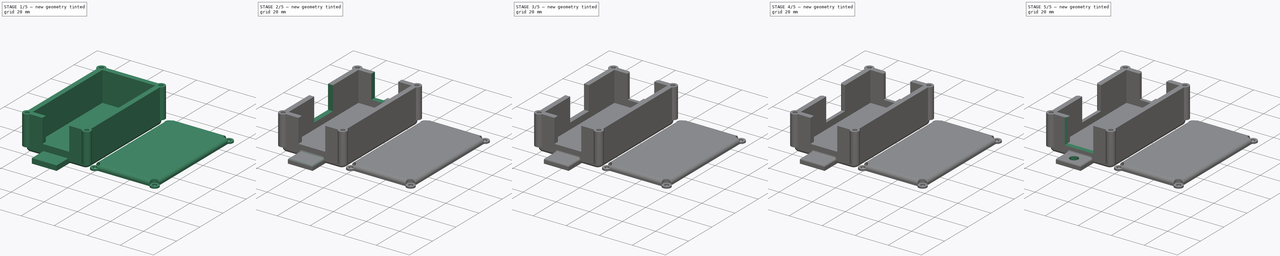
[diagram: build sequence overview — one tinted view per stage of 5, left to right]
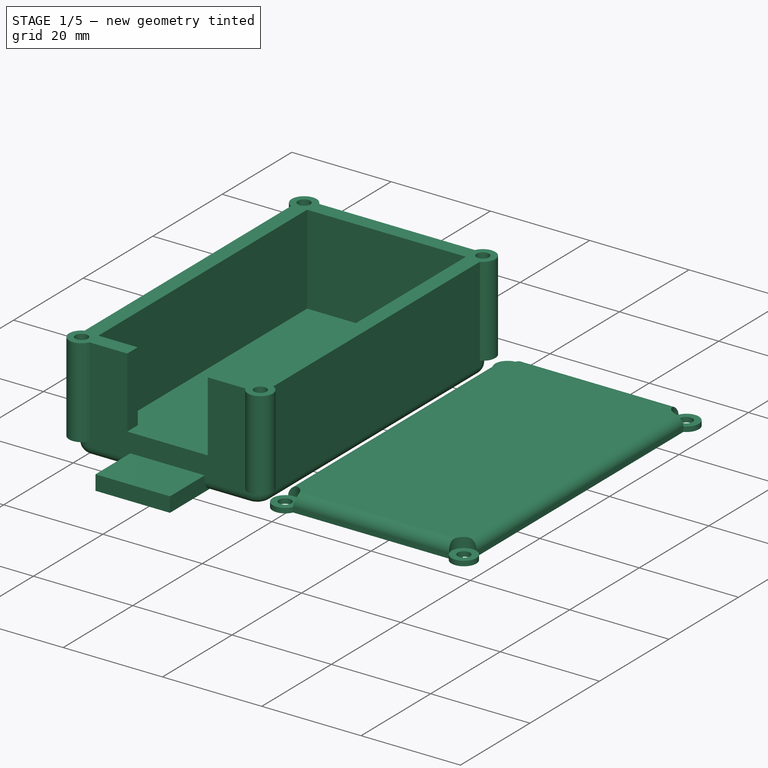
[diagram: stage 1 of 5 — iso view after this stage's code; geometry added in this stage tinted green]
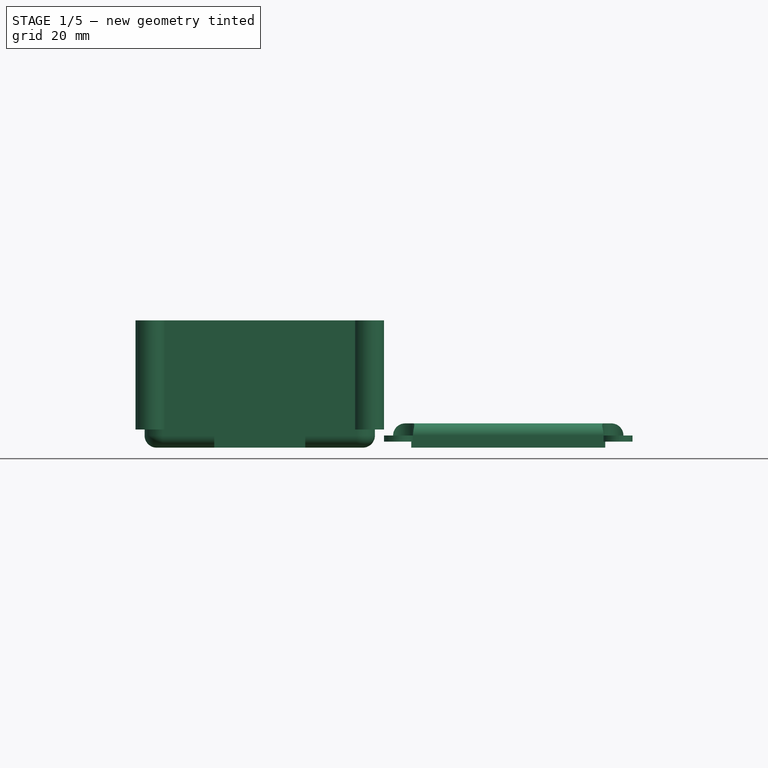
[diagram: stage 1 of 5 — front view after this stage's code; geometry added in this stage tinted green]
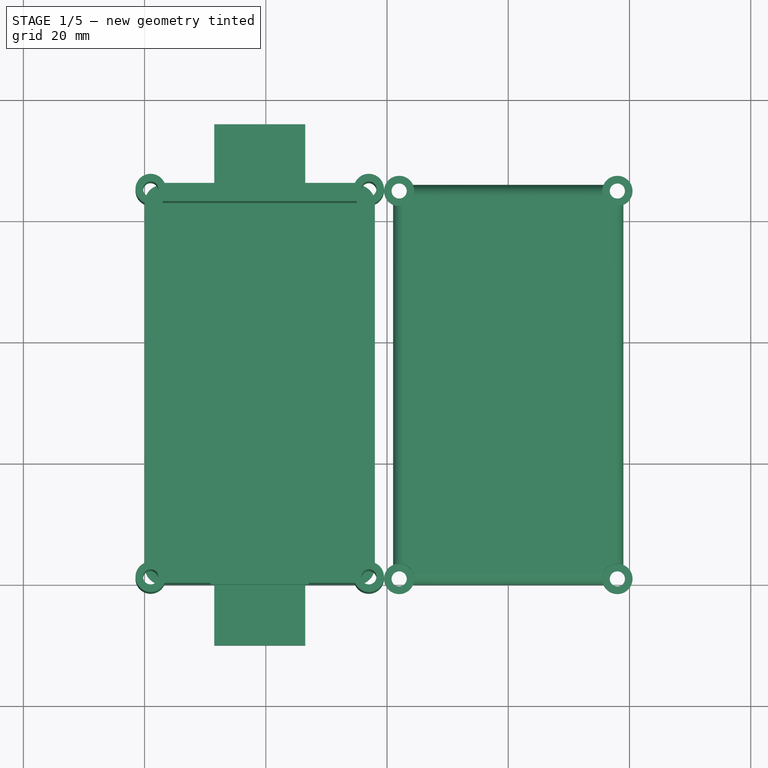
[diagram: stage 1 of 5 — top view after this stage's code; geometry added in this stage tinted green]
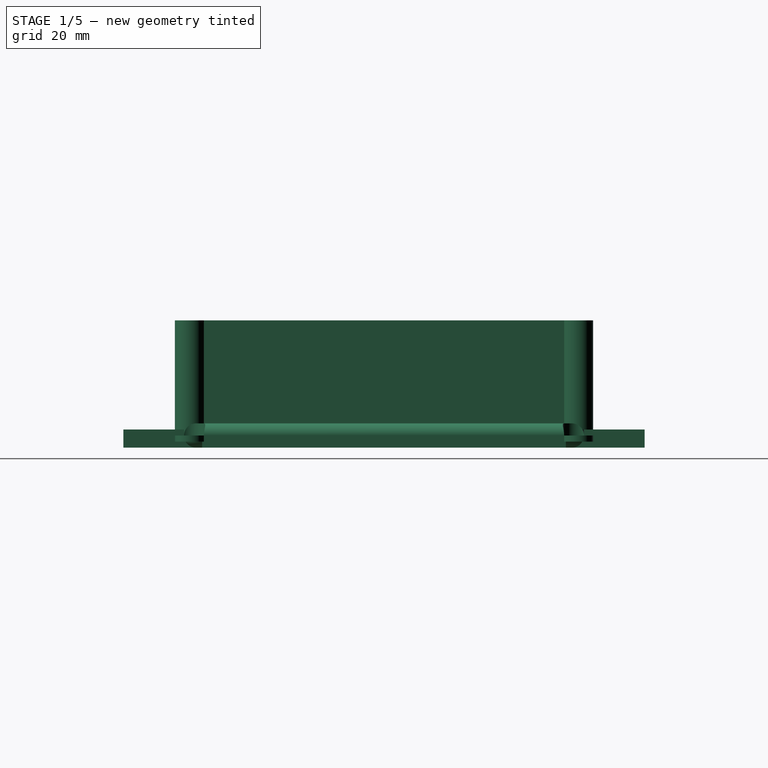
[diagram: stage 1 of 5 — right view after this stage's code; geometry added in this stage tinted green]
FCSTD DOCUMENT  (FreeCAD 0.14R3700 (Git))
Label: enclosure3
License: CC-BY 3.0
LicenseURL: http://creativecommons.org/licenses/by/3.0/
objects: PartDesign::Chamfer×8, Sketcher::SketchObject×5, PartDesign::Pocket×5, PartDesign::Fillet×2, Part::FeaturePython×1, Part::Box×1, Part::Fuse×1
note: 28 computed .brp shape members not serialized (recipe doc carries the construction recipe); baked Part::Feature solids carry a one-line shape summary decoded from their .brp

FEATURE [Part::FeaturePython] BoxEnclosure  # WARN: FeaturePython — macro-defined, semantics opaque (R4)
  BoreDepth = 2
  BoreDiameter = 5
  CountersinkAngle = 90
  CountersinkDiameter = 0
  InnerHeight = 18
  InnerLength = 60
  InnerWidth = 32
  LidFlip = false
  LipHeight = 1
  OuterHeight = 24
  OuterLength = 66
  OuterWidth = 38
  ScrewpostID = 2.5
  ScrewpostInset = 1
  ScrewpostOD = 5
  SideRadius = 3
  Thickness = 3
  TopAndBottomRadius = 2
FEATURE [Part::Box] Box  label="Tabs"
  Height = 3
  Length = 15
  Placement = pos=(11.5,-10,0) rot=(0,0,1;0rad)
  Width = 86
FEATURE [Part::Fuse] Fusion
  Base = -> BoxEnclosure
  Tool = -> Box
FEATURE [Sketcher::SketchObject] Sketch
  ExternalGeometry = -> [Fusion]
  Placement = pos=(0,0,0) rot=(1,0,0;1.5708rad)
  Support = -> Fusion [Face7]
  sketch-geometry (6):
    g0: LineSegment StartX=10.9 StartY=21 StartZ=0 EndX=27.1 EndY=21 EndZ=0
    g1: LineSegment StartX=27.1 StartY=21 StartZ=0 EndX=27.1 EndY=6.8 EndZ=0
    g2: LineSegment StartX=27.1 StartY=6.8 StartZ=0 EndX=10.9 EndY=6.8 EndZ=0
    g3: LineSegment StartX=10.9 StartY=6.8 StartZ=0 EndX=10.9 EndY=21 EndZ=0
    g4: LineSegment [constr] StartX=3.29129 StartY=3 StartZ=0 EndX=10.9 EndY=6.8 EndZ=0
    g5: LineSegment [constr] StartX=34.7087 StartY=3 StartZ=0 EndX=27.1 EndY=6.8 EndZ=0
  constraints (16):
    c: Coincident(g0,g1)
    c: Coincident(g1,g2)
    c: Coincident(g2,g3)
    c: Coincident(g3,g0)
    c: Horizontal(g0)
    c: Horizontal(g2)
    c: Vertical(g1)
    c: Vertical(g3)
    c: DistanceX(g0) = 16.2
    c: DistanceY(g1) = -14.2
    c: PointOnObject(g0,g-4)
    c: Coincident(g5,g1)
    c: Coincident(g2,g4)
    c: Coincident(g4,g-3)
    c: Coincident(g-5,g5)
    c: Equal(g4,g5)
FEATURE [PartDesign::Pocket] Pocket
  Length = 5
  Sketch = -> Sketch
  Type = 2
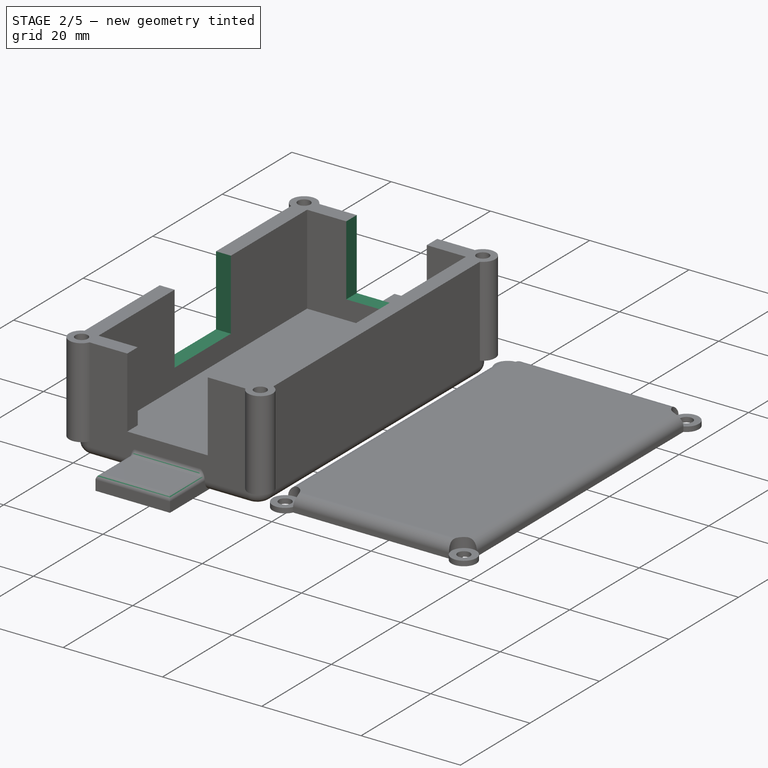
[diagram: stage 2 of 5 — iso view after this stage's code; geometry added in this stage tinted green]
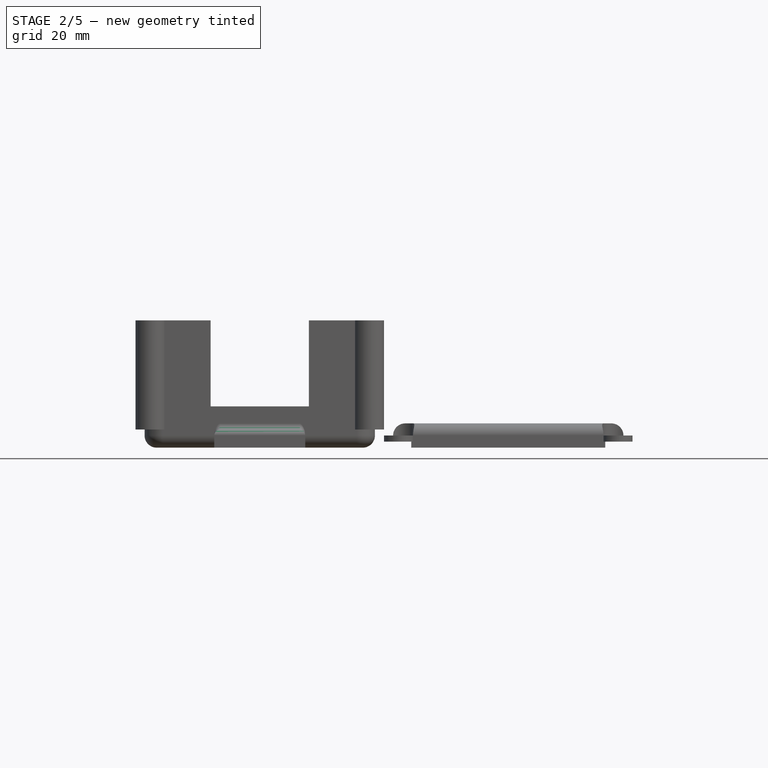
[diagram: stage 2 of 5 — front view after this stage's code; geometry added in this stage tinted green]
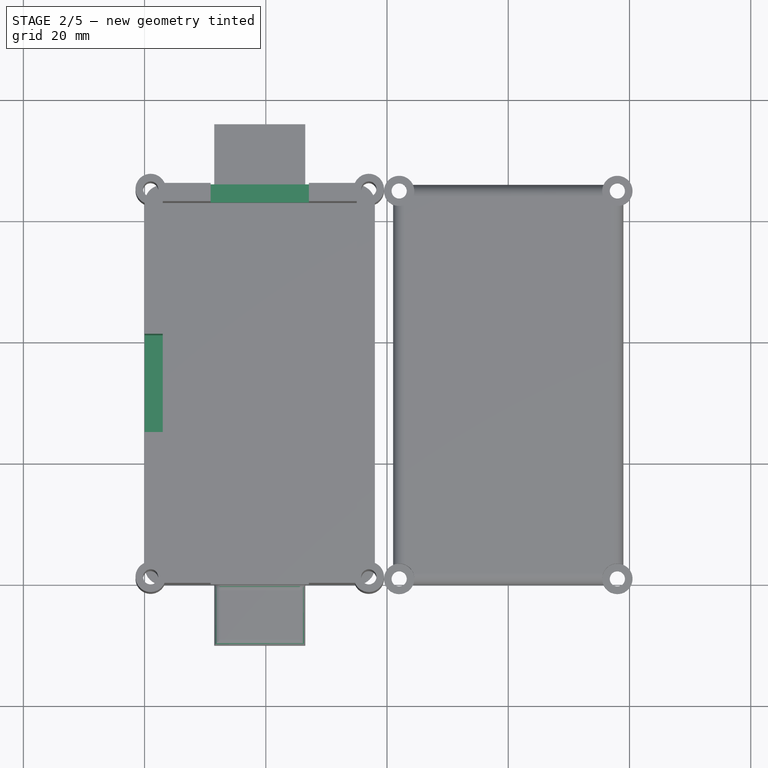
[diagram: stage 2 of 5 — top view after this stage's code; geometry added in this stage tinted green]
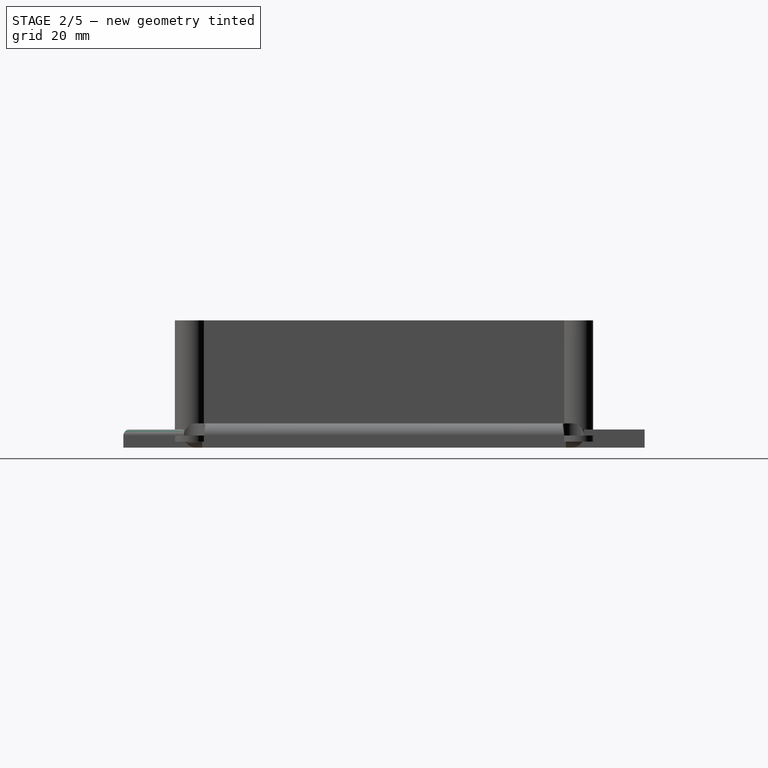
[diagram: stage 2 of 5 — right view after this stage's code; geometry added in this stage tinted green]
FEATURE [Sketcher::SketchObject] Sketch001
  ExternalGeometry = -> [Pocket]
  Placement = pos=(0,66,0) rot=(0,0.707107,0.707107;3.14159rad)
  Support = -> Pocket [Face40]
  sketch-geometry (6):
    g0: LineSegment StartX=-27.1 StartY=21 StartZ=0 EndX=-10.9 EndY=21 EndZ=0
    g1: LineSegment StartX=-10.9 StartY=21 StartZ=0 EndX=-10.9 EndY=6.8 EndZ=0
    g2: LineSegment StartX=-10.9 StartY=6.8 StartZ=0 EndX=-27.1 EndY=6.8 EndZ=0
    g3: LineSegment StartX=-27.1 StartY=6.8 StartZ=0 EndX=-27.1 EndY=21 EndZ=0
    g4: LineSegment [constr] StartX=-34.7087 StartY=3 StartZ=0 EndX=-27.1 EndY=6.8 EndZ=0
    g5: LineSegment [constr] StartX=-10.9 StartY=6.8 StartZ=0 EndX=-3.29129 EndY=3 EndZ=0
  constraints (16):
    c: Coincident(g0,g1)
    c: Coincident(g1,g2)
    c: Coincident(g2,g3)
    c: Coincident(g3,g0)
    c: Horizontal(g0)
    c: Horizontal(g2)
    c: Vertical(g1)
    c: Vertical(g3)
    c: Coincident(g4,g2)
    c: Coincident(g4,g-3)
    c: Coincident(g5,g1)
    c: Coincident(g5,g-5)
    c: PointOnObject(g0,g-4)
    c: Equal(g4,g5)
    c: DistanceY(g1) = -14.2
    c: DistanceX(g2) = -16.2
FEATURE [PartDesign::Pocket] Pocket001
  Length = 5
  Sketch = -> Sketch001
  Type = 2
FEATURE [Sketcher::SketchObject] Sketch002
  ExternalGeometry = -> [Pocket001]
  Placement = pos=(0,0,0) rot=(0.57735,-0.57735,-0.57735;2.0944rad)
  Support = -> Pocket001 [Face35]
  sketch-geometry (6):
    g0: LineSegment StartX=-41.1 StartY=21 StartZ=0 EndX=-24.9 EndY=21 EndZ=0
    g1: LineSegment StartX=-24.9 StartY=21 StartZ=0 EndX=-24.9 EndY=6.8 EndZ=0
    g2: LineSegment StartX=-24.9 StartY=6.8 StartZ=0 EndX=-41.1 EndY=6.8 EndZ=0
    g3: LineSegment StartX=-41.1 StartY=6.8 StartZ=0 EndX=-41.1 EndY=21 EndZ=0
    g4: LineSegment [constr] StartX=-62.7087 StartY=3 StartZ=0 EndX=-41.1 EndY=6.8 EndZ=0
    g5: LineSegment [constr] StartX=-24.9 StartY=6.8 StartZ=0 EndX=-3.29129 EndY=3 EndZ=0
  constraints (16):
    c: Coincident(g0,g1)
    c: Coincident(g1,g2)
    c: Coincident(g2,g3)
    c: Coincident(g3,g0)
    c: Horizontal(g0)
    c: Horizontal(g2)
    c: Vertical(g1)
    c: Vertical(g3)
    c: DistanceX(g0) = 16.2
    c: DistanceY(g1) = -14.2
    c: PointOnObject(g0,g-4)
    c: Coincident(g5,g1)
    c: Coincident(g4,g2)
    c: Coincident(g4,g-3)
    c: Coincident(g5,g-5)
    c: Equal(g4,g5)
FEATURE [PartDesign::Pocket] Pocket002
  Length = 5
  Sketch = -> Sketch002
  Type = 2
FEATURE [PartDesign::Fillet] Fillet
  Base = -> Pocket002 [Edge11,Edge8,Edge3,Edge12]
  Radius = 1
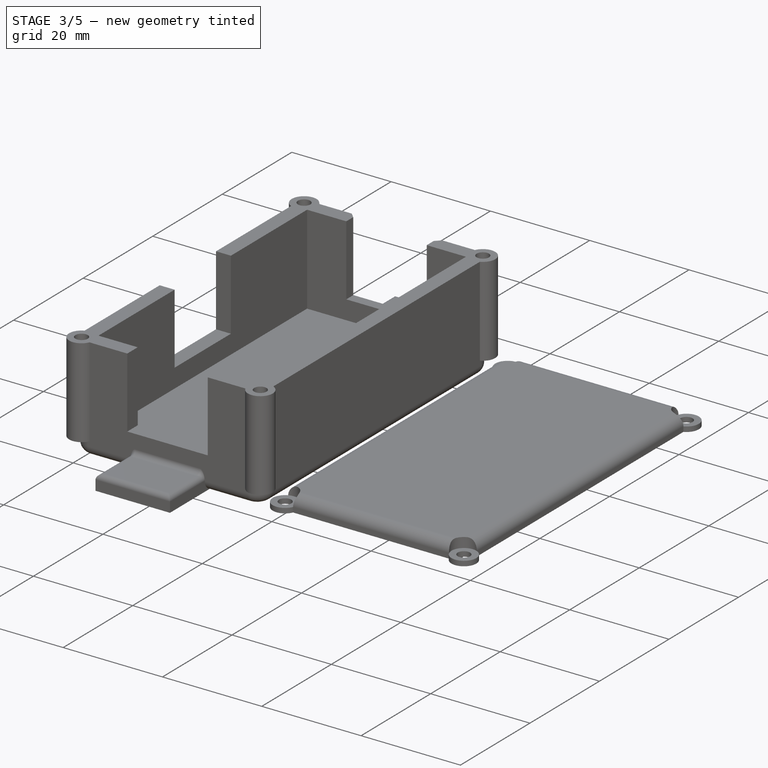
[diagram: stage 3 of 5 — iso view after this stage's code; geometry added in this stage tinted green]
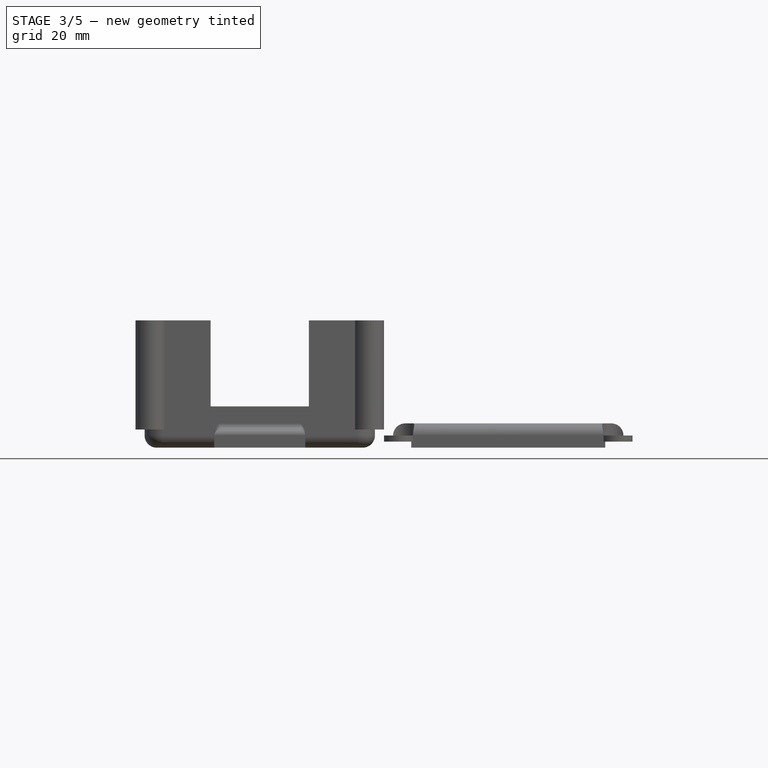
[diagram: stage 3 of 5 — front view after this stage's code; geometry added in this stage tinted green]
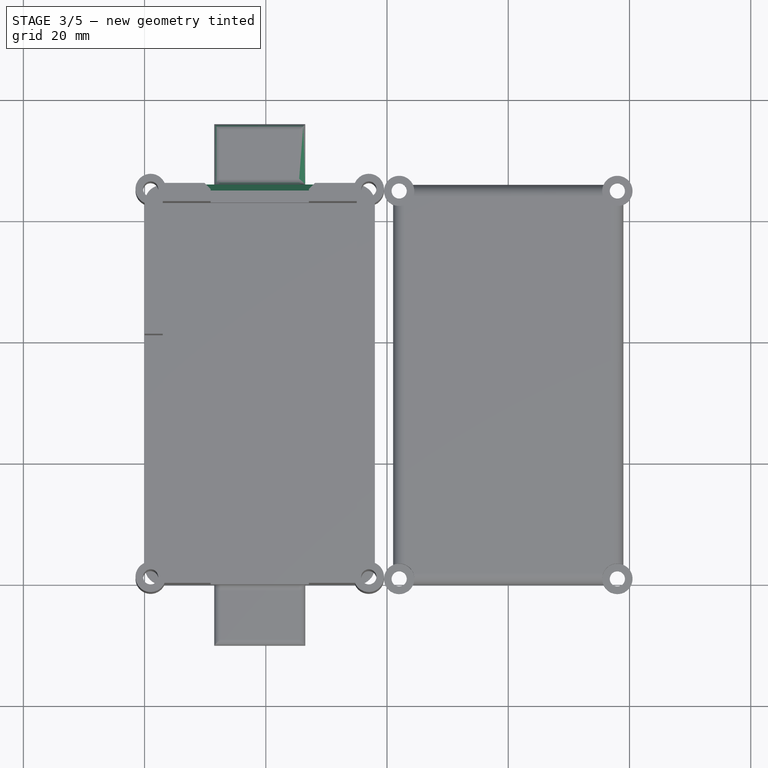
[diagram: stage 3 of 5 — top view after this stage's code; geometry added in this stage tinted green]
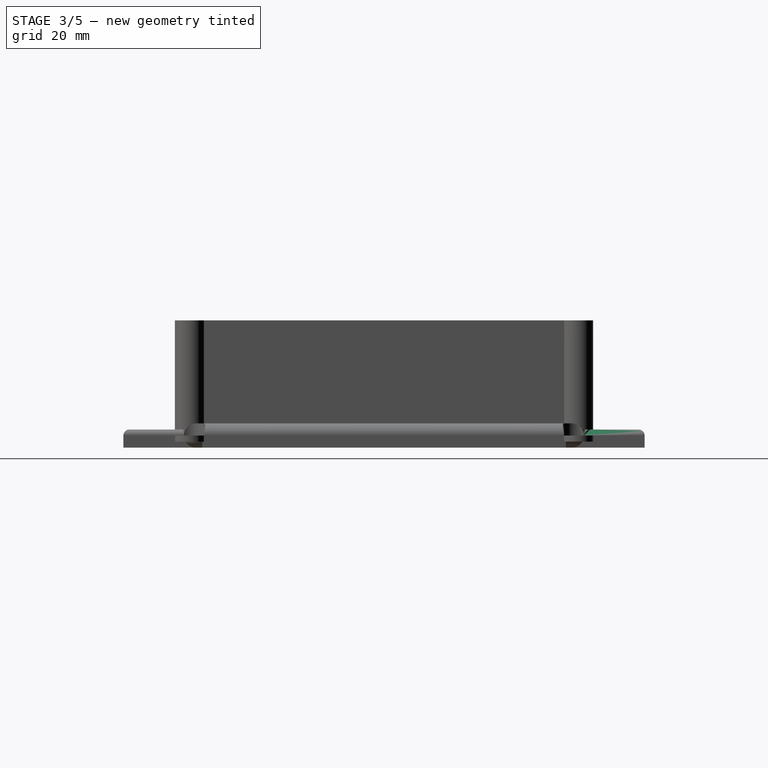
[diagram: stage 3 of 5 — right view after this stage's code; geometry added in this stage tinted green]
FEATURE [PartDesign::Fillet] Fillet001
  Base = -> Fillet [Edge121,Edge124,Edge126,Edge156]
  Radius = 1
FEATURE [PartDesign::Chamfer] Chamfer
  Base = -> Fillet001 [Edge41]
  Size = 1
FEATURE [PartDesign::Chamfer] Chamfer001
  Base = -> Chamfer [Edge6]
  Size = 1
FEATURE [PartDesign::Chamfer] Chamfer002
  Base = -> Chamfer001 [Edge2]
  Size = 1
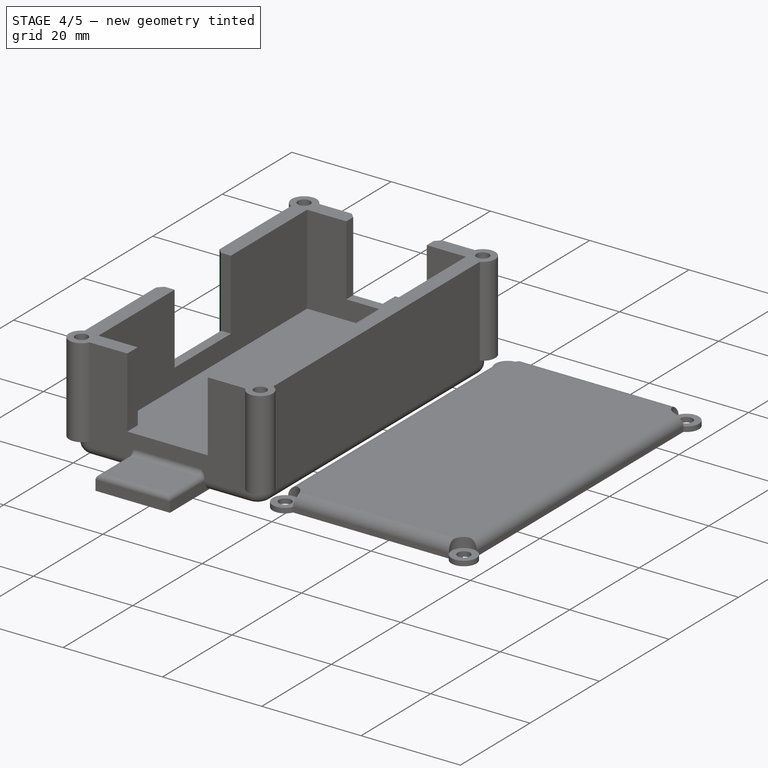
[diagram: stage 4 of 5 — iso view after this stage's code; geometry added in this stage tinted green]
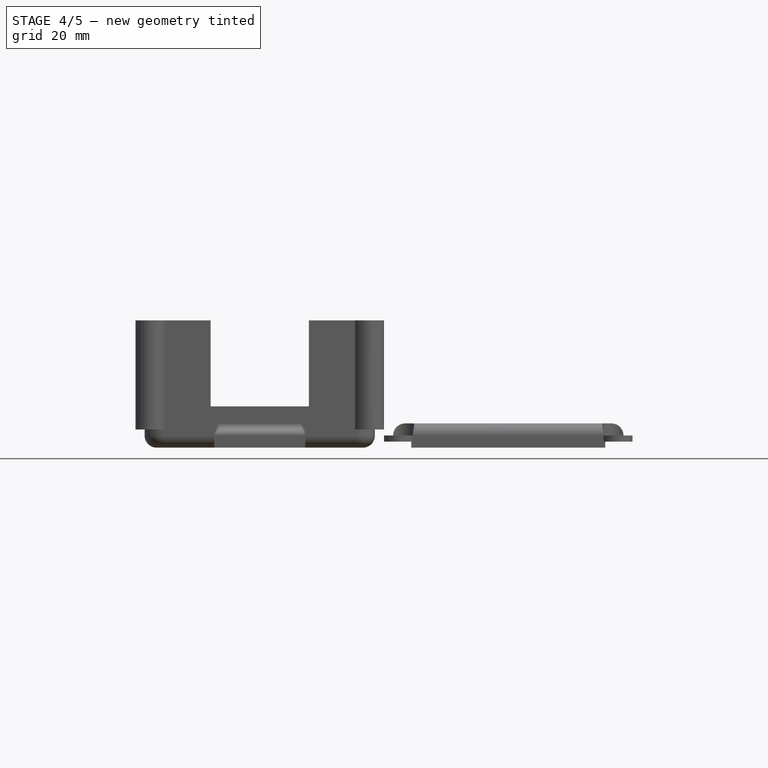
[diagram: stage 4 of 5 — front view after this stage's code; geometry added in this stage tinted green]
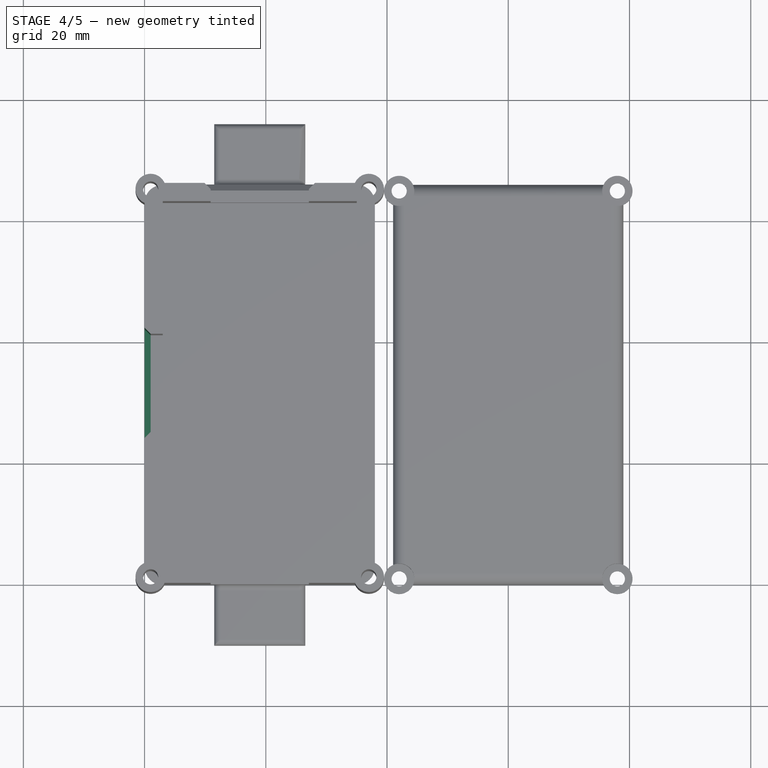
[diagram: stage 4 of 5 — top view after this stage's code; geometry added in this stage tinted green]
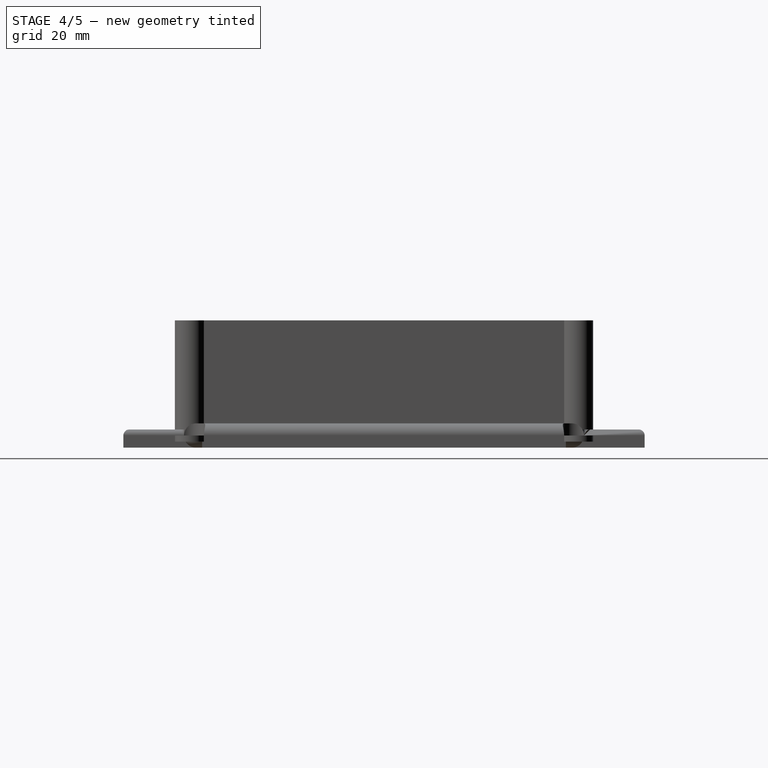
[diagram: stage 4 of 5 — right view after this stage's code; geometry added in this stage tinted green]
FEATURE [PartDesign::Chamfer] Chamfer003
  Base = -> Chamfer002 [Edge96]
  Size = 1
FEATURE [PartDesign::Chamfer] Chamfer004
  Base = -> Chamfer003 [Edge18]
  Size = 1
FEATURE [PartDesign::Chamfer] Chamfer005
  Base = -> Chamfer004 [Edge6]
  Size = 1
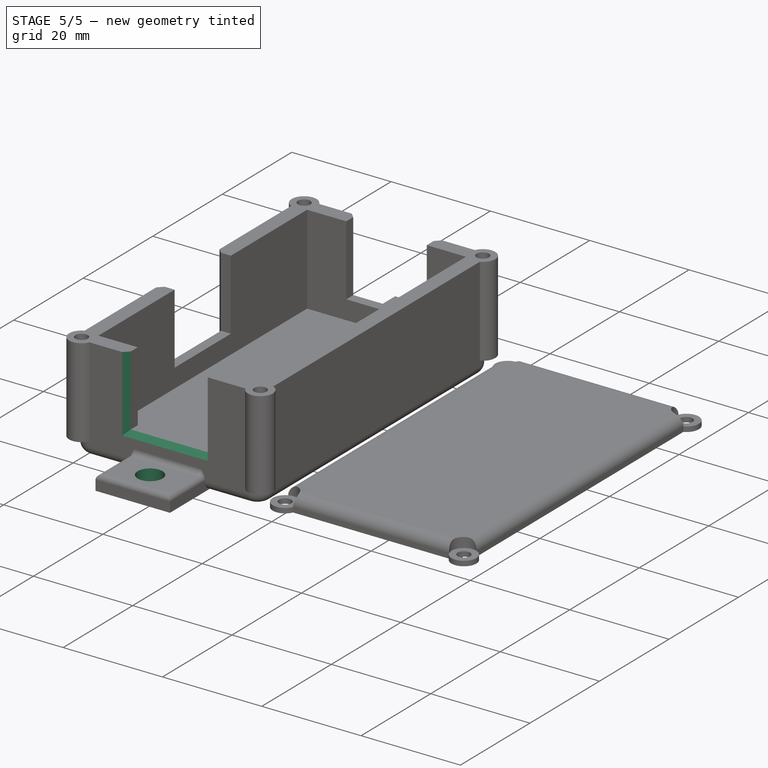
[diagram: stage 5 of 5 — iso view after this stage's code; geometry added in this stage tinted green]
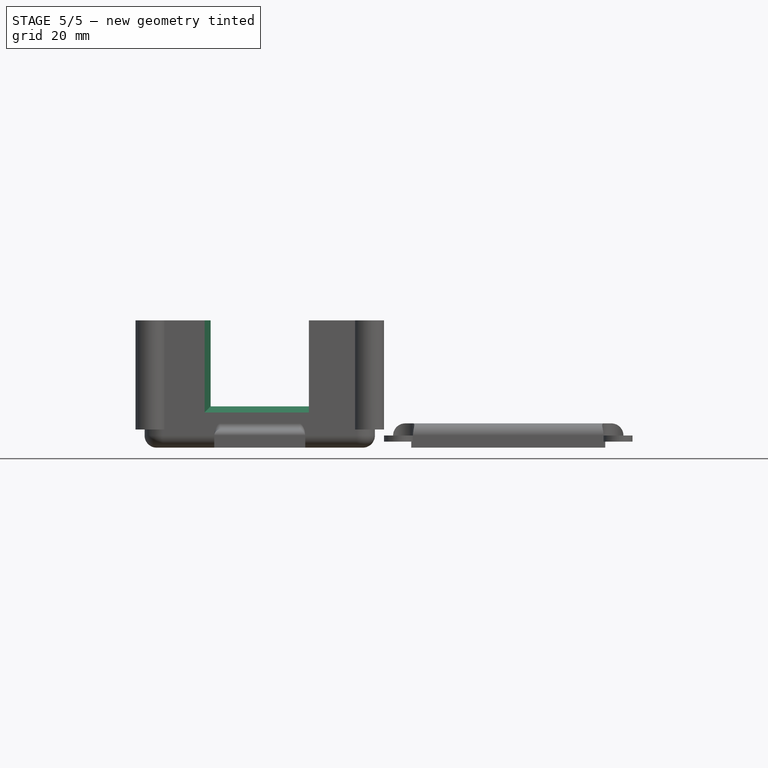
[diagram: stage 5 of 5 — front view after this stage's code; geometry added in this stage tinted green]
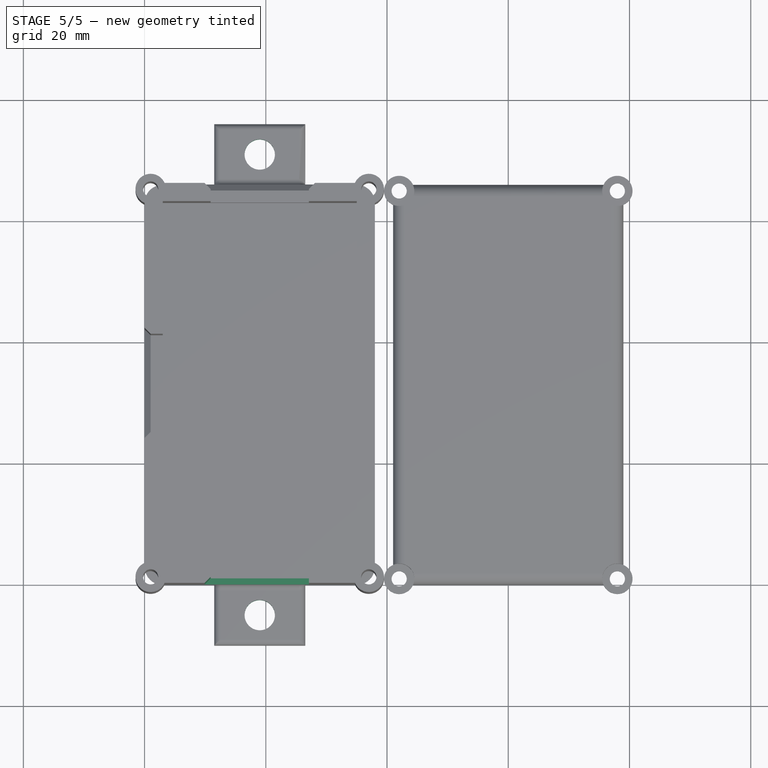
[diagram: stage 5 of 5 — top view after this stage's code; geometry added in this stage tinted green]
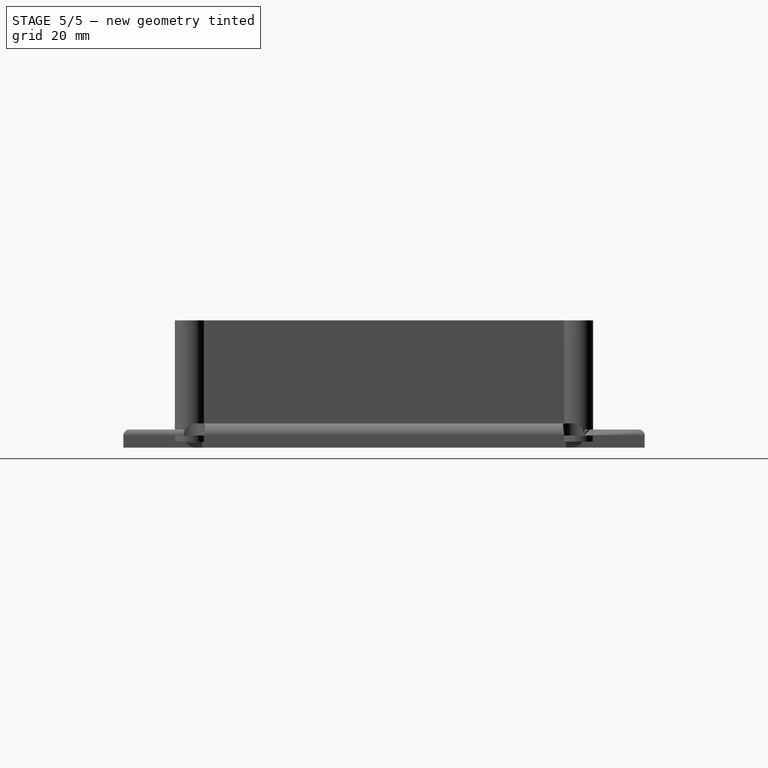
[diagram: stage 5 of 5 — right view after this stage's code; geometry added in this stage tinted green]
FEATURE [PartDesign::Chamfer] Chamfer006
  Base = -> Chamfer005 [Edge79]
  Size = 1
FEATURE [PartDesign::Chamfer] Chamfer007
  Base = -> Chamfer006 [Edge28]
  Size = 1
FEATURE [Sketcher::SketchObject] Sketch003
  ExternalGeometry = -> [Chamfer007]
  Placement = pos=(0,0,3) rot=(0,0,1;0rad)
  Support = -> Chamfer007 [Face43]
  sketch-geometry (5):
    g0: LineSegment [constr] StartX=12.5 StartY=-9 StartZ=0 EndX=19 EndY=-5 EndZ=0
    g1: LineSegment [constr] StartX=12.5 StartY=-1 StartZ=0 EndX=19 EndY=-5 EndZ=0
    g2: LineSegment [constr] StartX=25.5 StartY=-1 StartZ=0 EndX=19 EndY=-5 EndZ=0
    g3: LineSegment [constr] StartX=25.5 StartY=-9 StartZ=0 EndX=19 EndY=-5 EndZ=0
    g4: Circle CenterX=19 CenterY=-5 CenterZ=0 NormalX=0 NormalY=0 NormalZ=1 Radius=2.5
  constraints (12):
    c: Coincident(g2,g0)
    c: Coincident(g1,g0)
    c: Coincident(g3,g0)
    c: Coincident(g0,g-3)
    c: Coincident(g1,g-3)
    c: Coincident(g2,g-4)
    c: Coincident(g3,g-4)
    c: Coincident(g4,g0)
    c: Equal(g1,g0)
    c: Equal(g2,g1)
    c: Equal(g2,g3)
    c: Radius(g4) = 2.5
FEATURE [PartDesign::Pocket] Pocket003
  Length = 5
  Sketch = -> Sketch003
  Type = 2
FEATURE [Sketcher::SketchObject] Sketch004
  ExternalGeometry = -> [Pocket003]
  Placement = pos=(0,0,3) rot=(0,0,1;0rad)
  Support = -> Pocket003 [Face89]
  sketch-geometry (4):
    g0: LineSegment [constr] StartX=12.5 StartY=67 StartZ=0 EndX=19 EndY=71 EndZ=0
    g1: LineSegment [constr] StartX=12.5 StartY=75 StartZ=0 EndX=19 EndY=71 EndZ=0
    g2: LineSegment [constr] StartX=25.5 StartY=75 StartZ=0 EndX=19 EndY=71 EndZ=0
    g3: Circle CenterX=19 CenterY=71 CenterZ=0 NormalX=0 NormalY=0 NormalZ=1 Radius=2.5
  constraints (9):
    c: Coincident(g1,g-3)
    c: Coincident(g1,g0)
    c: Coincident(g-3,g0)
    c: Equal(g1,g0)
    c: Coincident(g2,g-4)
    c: Coincident(g0,g2)
    c: Equal(g1,g2)
    c: Coincident(g3,g0)
    c: Radius(g3) = 2.5
FEATURE [PartDesign::Pocket] Pocket004
  Length = 5
  Sketch = -> Sketch004
  Type = 2
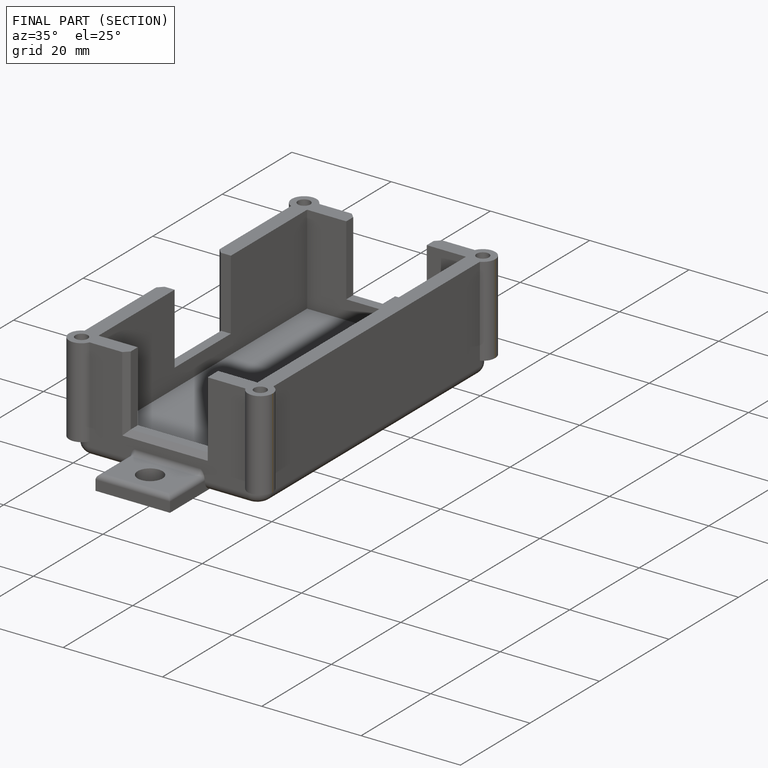
[diagram: finished part — half-section view (interior)]
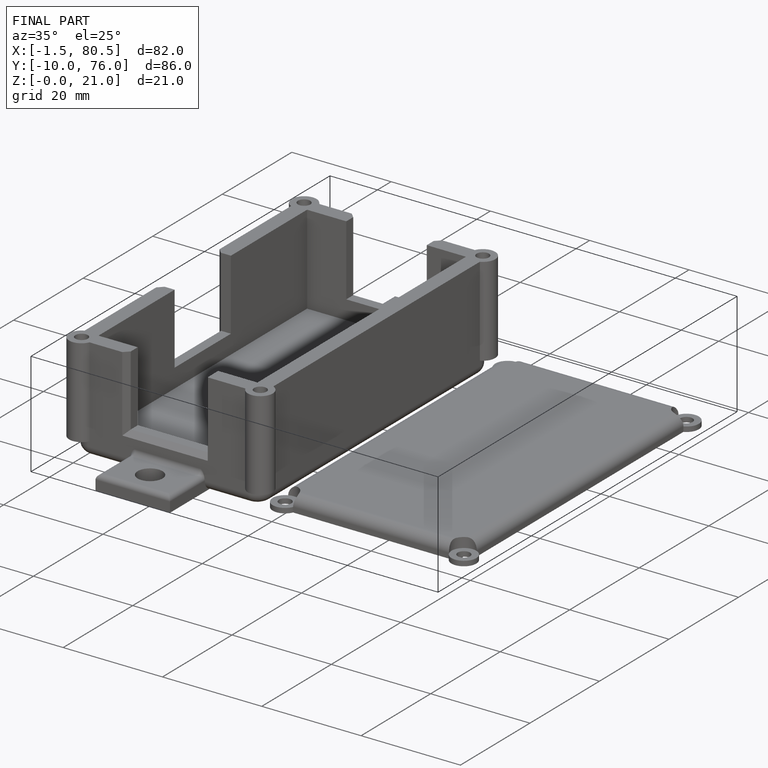
[diagram: finished part — iso view with bounding-box wireframe]
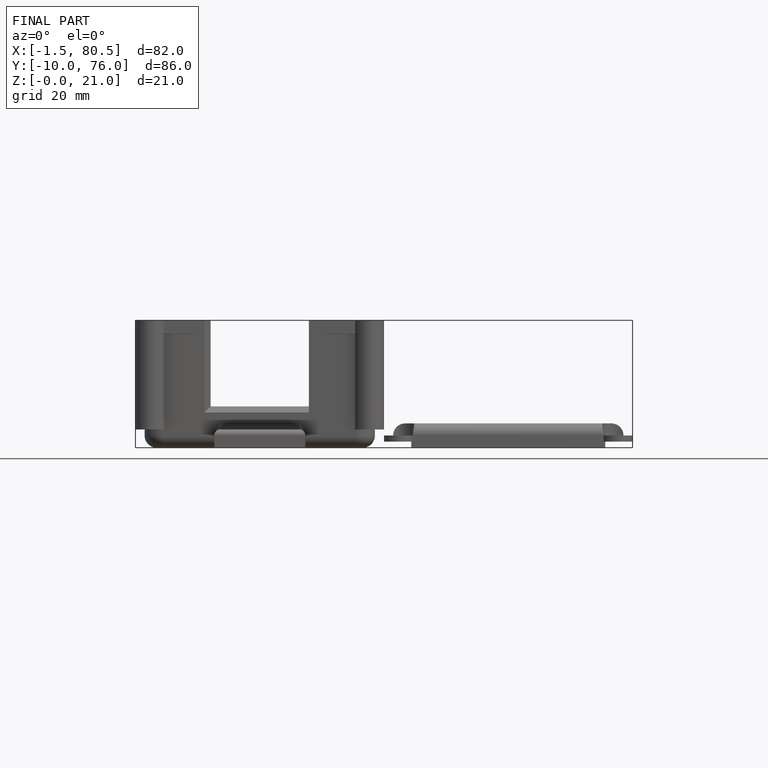
[diagram: finished part — front view with bounding-box wireframe]
